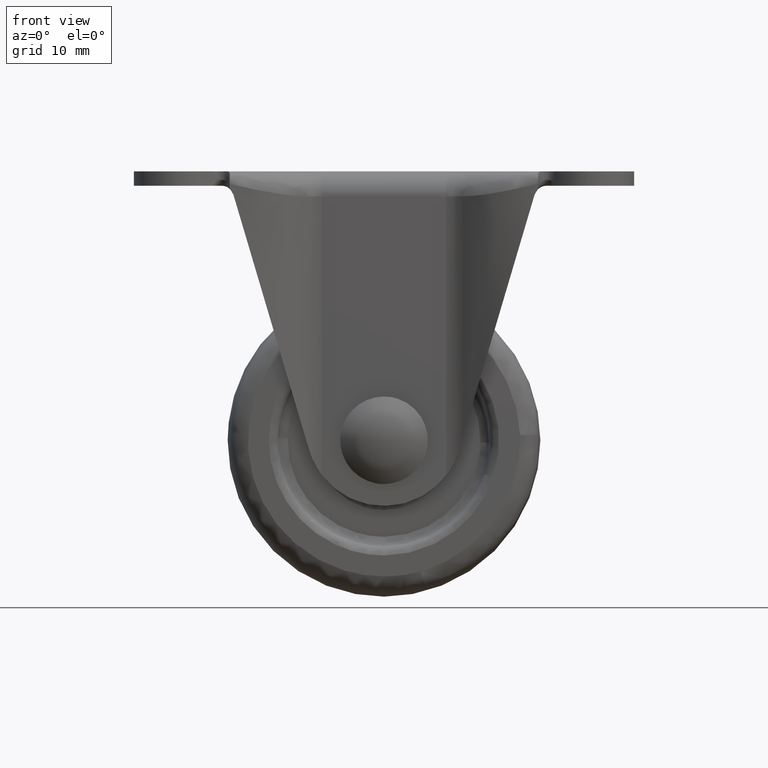
[diagram: clean part render]
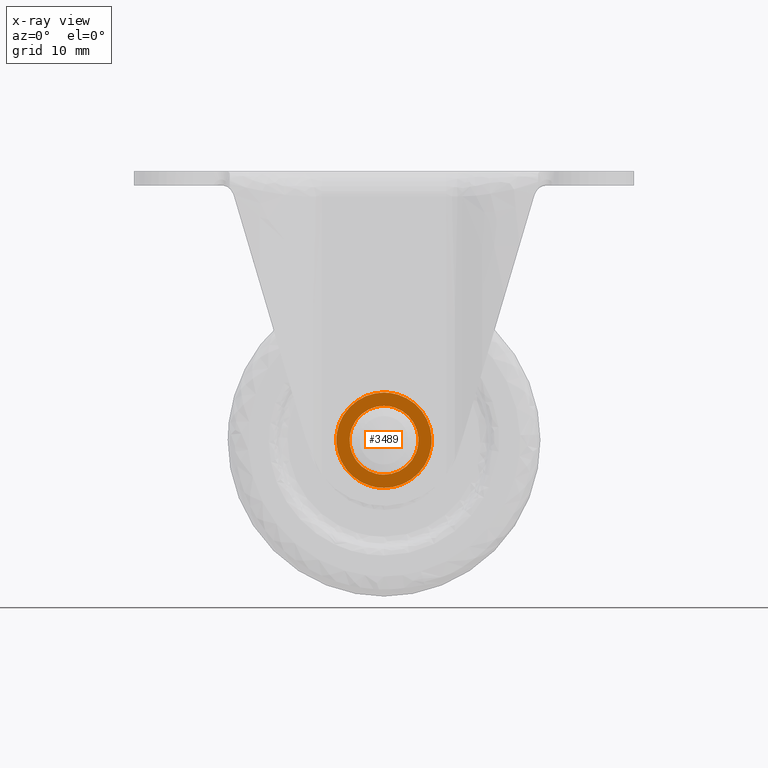
[diagram: x-ray — body ghosted, one internal face saturated and labeled with its STEP entity id]
A machine part, front view, then the same camera in x-ray: the body is ghosted and one INTERNAL B-rep face — a face not visible from any outside direction — is saturated and labeled: STEP entity #3489.
In plain terms, the highlighted face is a freeform B-spline surface patch.
Its self-contained STEP definition (entity closure, byte-faithful):
#707=CARTESIAN_POINT('',(5.461553553201343,-15.250000000000000,-43.649178546639902));
#708=VERTEX_POINT('',#707);
#714=CARTESIAN_POINT('',(0.0,-15.250000000000000,-37.500000000000000));
#715=VERTEX_POINT('',#714);
#716=CARTESIAN_POINT('',(5.461553553201343,-15.250000000000000,-43.649178546639909));
#717=CARTESIAN_POINT('',(5.499999999999999,-15.249999999999998,-43.325727734594658));
#718=CARTESIAN_POINT('',(5.500000000000000,-15.250000000000000,-43.0));
#719=CARTESIAN_POINT('',(5.500000000000001,-15.249999999999998,-37.499999999999993));
#720=CARTESIAN_POINT('',(0.0,-15.250000000000000,-37.500000000000000));
#728=(BOUNDED_CURVE()B_SPLINE_CURVE(2,(#716,#717,#718,#719,#720),.UNSPECIFIED.,.F.,.U.)B_SPLINE_CURVE_WITH_KNOTS((3,2,3),(0.229562775034887,0.250000000000000,0.500000000000000),.UNSPECIFIED.)CURVE()GEOMETRIC_REPRESENTATION_ITEM()RATIONAL_B_SPLINE_CURVE((0.956027345178794,0.976056301585414,1.0,0.707106781186548,1.0))REPRESENTATION_ITEM(''));
#729=EDGE_CURVE('',#708,#715,#728,.T.);
#731=CARTESIAN_POINT('',(-5.489741391318212,-15.250000000000000,-42.664233032524670));
#732=VERTEX_POINT('',#731);
#733=CARTESIAN_POINT('',(0.0,-15.250000000000000,-37.500000000000000));
#734=CARTESIAN_POINT('',(-5.173883367917849,-15.250000000000005,-37.500000000000000));
#735=CARTESIAN_POINT('',(-5.489741391318212,-15.249999999999998,-42.664233032524677));
#743=(BOUNDED_CURVE()B_SPLINE_CURVE(2,(#733,#734,#735),.UNSPECIFIED.,.F.,.U.)B_SPLINE_CURVE_WITH_KNOTS((3,3),(0.500000000000000,0.739332962239855),.UNSPECIFIED.)CURVE()GEOMETRIC_REPRESENTATION_ITEM()RATIONAL_B_SPLINE_CURVE((1.0,0.719603993285641,0.976072041668673))REPRESENTATION_ITEM(''));
#744=EDGE_CURVE('',#715,#732,#743,.T.);
#822=CARTESIAN_POINT('',(0.0,-15.250000000000000,-48.499999999999993));
#823=VERTEX_POINT('',#822);
#824=CARTESIAN_POINT('',(-5.489741391318212,-15.250000000000000,-42.664233032524670));
#825=CARTESIAN_POINT('',(-5.500000000000000,-15.250000000000002,-42.831959801824055));
#826=CARTESIAN_POINT('',(-5.500000000000000,-15.250000000000000,-43.0));
#827=CARTESIAN_POINT('',(-5.500000000000001,-15.249999999999998,-48.500000000000007));
#828=CARTESIAN_POINT('',(0.0,-15.250000000000000,-48.499999999999993));
#836=(BOUNDED_CURVE()B_SPLINE_CURVE(2,(#824,#825,#826,#827,#828),.UNSPECIFIED.,.F.,.U.)B_SPLINE_CURVE_WITH_KNOTS((3,2,3),(0.739332962239855,0.750000000000000,1.0),.UNSPECIFIED.)CURVE()GEOMETRIC_REPRESENTATION_ITEM()RATIONAL_B_SPLINE_CURVE((0.976072041668673,0.987502787900906,1.0,0.707106781186548,1.0))REPRESENTATION_ITEM(''));
#837=EDGE_CURVE('',#732,#823,#836,.T.);
#839=CARTESIAN_POINT('',(0.0,-15.250000000000000,-48.499999999999993));
#840=CARTESIAN_POINT('',(4.884968669362206,-15.249999999999998,-48.500000000000007));
#841=CARTESIAN_POINT('',(5.461553553201343,-15.250000000000004,-43.649178546639902));
#849=(BOUNDED_CURVE()B_SPLINE_CURVE(2,(#839,#840,#841),.UNSPECIFIED.,.F.,.U.)B_SPLINE_CURVE_WITH_KNOTS((3,3),(0.0,0.229562775034887),.UNSPECIFIED.)CURVE()GEOMETRIC_REPRESENTATION_ITEM()RATIONAL_B_SPLINE_CURVE((1.0,0.731050479601134,0.956027345178793))REPRESENTATION_ITEM(''));
#850=EDGE_CURVE('',#823,#708,#849,.T.);
#1929=CARTESIAN_POINT('',(-7.603838188687993,-15.250000000000000,-43.574404782110683));
#1930=VERTEX_POINT('',#1929);
#1931=CARTESIAN_POINT('',(0.0,-15.250000000000000,-50.625503000000002));
#1932=VERTEX_POINT('',#1931);
#1933=CARTESIAN_POINT('',(-7.603838188687993,-15.250000000000002,-43.574404782110676));
#1934=CARTESIAN_POINT('',(-7.071188168719928,-15.249999999999993,-50.625502999999995));
#1935=CARTESIAN_POINT('',(0.0,-15.250000000000000,-50.625503000000002));
#1943=(BOUNDED_CURVE()B_SPLINE_CURVE(2,(#1933,#1934,#1935),.UNSPECIFIED.,.F.,.U.)B_SPLINE_CURVE_WITH_KNOTS((3,3),(0.763129840752451,1.0),.UNSPECIFIED.)CURVE()GEOMETRIC_REPRESENTATION_ITEM()RATIONAL_B_SPLINE_CURVE((0.970850634496185,0.722489346468521,1.0))REPRESENTATION_ITEM(''));
#1944=EDGE_CURVE('',#1930,#1932,#1943,.T.);
#1962=CARTESIAN_POINT('',(7.603838188687993,-15.250000000000000,-42.425595217889317));
#1963=VERTEX_POINT('',#1962);
#1977=CARTESIAN_POINT('',(0.0,-15.250000000000000,-50.625503000000002));
#1978=CARTESIAN_POINT('',(7.625502999999999,-15.250000000000002,-50.625502999999995));
#1979=CARTESIAN_POINT('',(7.625502999999999,-15.250000000000000,-43.0));
#1980=CARTESIAN_POINT('',(7.625502999999999,-15.249999999999996,-42.712389043197213));
#1981=CARTESIAN_POINT('',(7.603838188687993,-15.250000000000000,-42.425595217889331));
#1989=(BOUNDED_CURVE()B_SPLINE_CURVE(2,(#1977,#1978,#1979,#1980,#1981),.UNSPECIFIED.,.F.,.U.)B_SPLINE_CURVE_WITH_KNOTS((3,2,3),(0.0,0.250000000000000,0.263129840752451),.UNSPECIFIED.)CURVE()GEOMETRIC_REPRESENTATION_ITEM()RATIONAL_B_SPLINE_CURVE((1.0,0.707106781186547,1.0,0.984617434718027,0.970850634496185))REPRESENTATION_ITEM(''));
#1990=EDGE_CURVE('',#1932,#1963,#1989,.T.);
#2018=CARTESIAN_POINT('',(0.0,-15.250000000000000,-35.374496999999998));
#2019=VERTEX_POINT('',#2018);
#2020=CARTESIAN_POINT('',(0.0,-15.250000000000000,-35.374496999999998));
#2021=CARTESIAN_POINT('',(-7.625502999999999,-15.250000000000002,-35.374496999999998));
#2022=CARTESIAN_POINT('',(-7.625502999999999,-15.250000000000000,-43.0));
#2023=CARTESIAN_POINT('',(-7.625502999999999,-15.250000000000004,-43.287610956802808));
#2024=CARTESIAN_POINT('',(-7.603838188687992,-15.250000000000000,-43.574404782110676));
#2032=(BOUNDED_CURVE()B_SPLINE_CURVE(2,(#2020,#2021,#2022,#2023,#2024),.UNSPECIFIED.,.F.,.U.)B_SPLINE_CURVE_WITH_KNOTS((3,2,3),(0.500000000000000,0.750000000000000,0.763129840752452),.UNSPECIFIED.)CURVE()GEOMETRIC_REPRESENTATION_ITEM()RATIONAL_B_SPLINE_CURVE((1.0,0.707106781186547,1.0,0.984617434718025,0.970850634496183))REPRESENTATION_ITEM(''));
#2033=EDGE_CURVE('',#2019,#1930,#2032,.T.);
#2035=CARTESIAN_POINT('',(7.603838188687993,-15.250000000000002,-42.425595217889331));
#2036=CARTESIAN_POINT('',(7.071188168719929,-15.250000000000005,-35.374496999999991));
#2037=CARTESIAN_POINT('',(0.0,-15.250000000000000,-35.374496999999998));
#2045=(BOUNDED_CURVE()B_SPLINE_CURVE(2,(#2035,#2036,#2037),.UNSPECIFIED.,.F.,.U.)B_SPLINE_CURVE_WITH_KNOTS((3,3),(0.263129840752451,0.500000000000000),.UNSPECIFIED.)CURVE()GEOMETRIC_REPRESENTATION_ITEM()RATIONAL_B_SPLINE_CURVE((0.970850634496185,0.722489346468521,1.0))REPRESENTATION_ITEM(''));
#2046=EDGE_CURVE('',#1963,#2019,#2045,.T.);
#3472=CARTESIAN_POINT('',(-8.385524325221706,-15.250000000000000,-51.387291292802722));
#3473=CARTESIAN_POINT('',(-8.385524325221706,-15.250000000000000,-34.612708843551893));
#3474=CARTESIAN_POINT('',(8.385524325221708,-15.250000000000000,-51.387291292802722));
#3475=CARTESIAN_POINT('',(8.385524325221708,-15.250000000000000,-34.612708843551893));
#3476=B_SPLINE_SURFACE_WITH_KNOTS('',1,1,((#3472,#3474),(#3473,#3475)),.UNSPECIFIED.,.F.,.F.,.U.,(2,2),(2,2),(0.0,16.774582449250829),(0.0,16.771048650443412),.UNSPECIFIED.);
#3477=ORIENTED_EDGE('',*,*,#1990,.T.);
#3478=ORIENTED_EDGE('',*,*,#2046,.T.);
#3479=ORIENTED_EDGE('',*,*,#2033,.T.);
#3480=ORIENTED_EDGE('',*,*,#1944,.T.);
#3481=EDGE_LOOP('',(#3477,#3478,#3479,#3480));
#3482=FACE_OUTER_BOUND('',#3481,.T.);
#3483=ORIENTED_EDGE('',*,*,#744,.F.);
#3484=ORIENTED_EDGE('',*,*,#729,.F.);
#3485=ORIENTED_EDGE('',*,*,#850,.F.);
#3486=ORIENTED_EDGE('',*,*,#837,.F.);
#3487=EDGE_LOOP('',(#3483,#3484,#3485,#3486));
#3488=FACE_BOUND('',#3487,.T.);
#3489=ADVANCED_FACE('',(#3482,#3488),#3476,.F.);